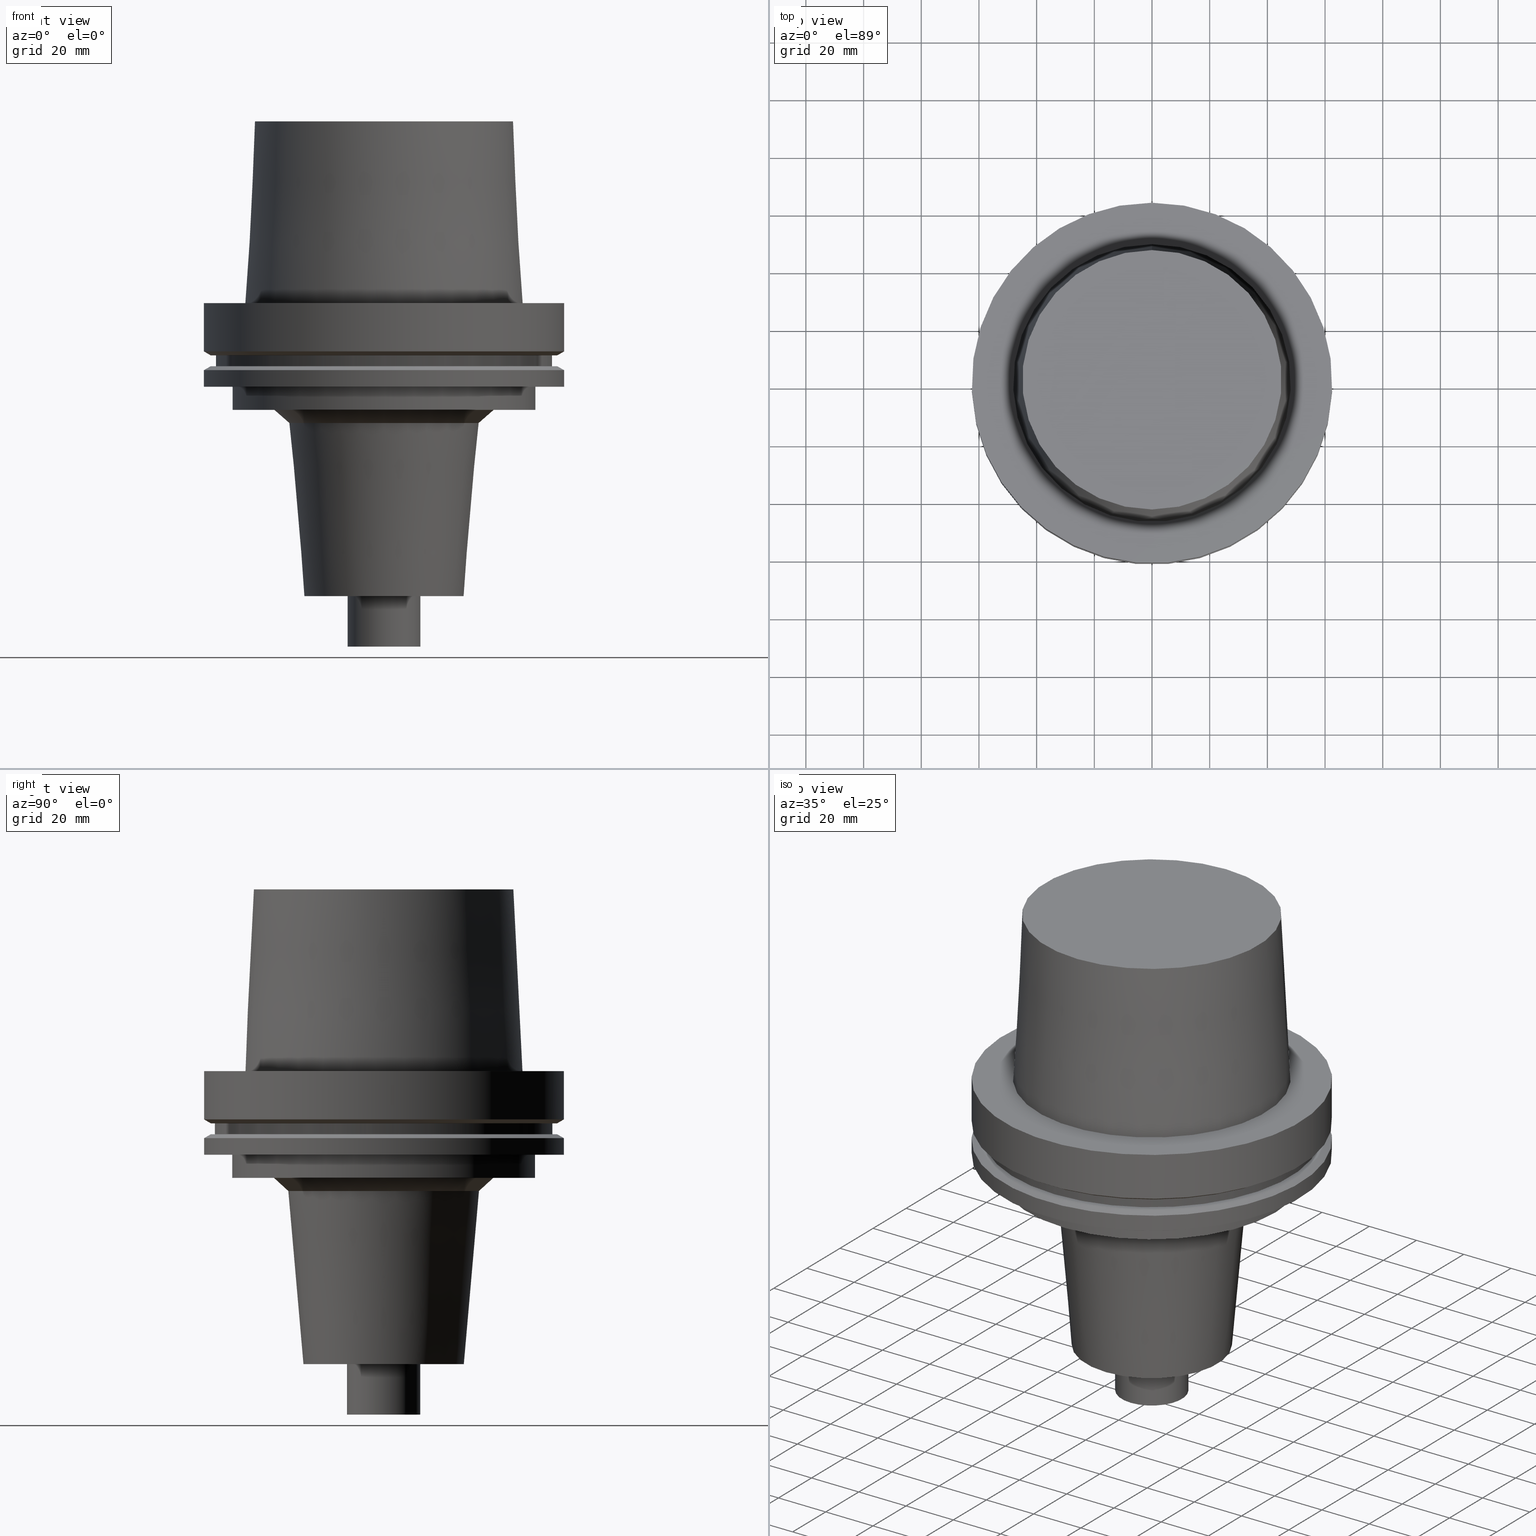
[diagram: canonical four-view strip — front | top / right | iso, engineering-drawing reading convention]
A machine part, canonical four-view strip (front | top / right | iso — engineering-drawing reading convention). The complete STEP part file that produces these views, byte-faithful:
ISO-10303-21;
HEADER;
FILE_DESCRIPTION((''),'1');
FILE_NAME('V:/02_3D_Field-HP\X2\FF71FF6FFF8CFF9F5916\X0\2013/02_Step_Field-HP\X2\FF71FF6FFF8CFF9F5916\X0\2013/HSK-A125-SMC1.000-4.stp','2017-07-11T04:44:14',(''),(''),'Spatial Interop R21 SP3','Kubotek KeyCreator 2011 V10.0.2 (22737)',' ');
FILE_SCHEMA(('automotive_design'));
ENDSEC;
DATA;
#1=MECHANICAL_DESIGN_GEOMETRIC_PRESENTATION_REPRESENTATION(' ',(#10,#11,#12,#13,#14,#15,#16,#17,#18,#19,#20,#21,#22,#23,#24,#25,#26,#27,#28,#29,#30,#31,#32,#33,#34,#35,#36,#37,#38,#39,#40,#41,#42,#43,#44,#45),#6);
#2=PRODUCT_DEFINITION_CONTEXT('',#46,'design');
#3=APPLICATION_PROTOCOL_DEFINITION('INTERNATIONAL STANDARD','automotive_design',1994,#46);
#4=PRODUCT_CATEGORY_RELATIONSHIP('NONE','NONE',#47,#48);
#5=SHAPE_DEFINITION_REPRESENTATION(#49,#50);
#6= (GEOMETRIC_REPRESENTATION_CONTEXT(3)GLOBAL_UNCERTAINTY_ASSIGNED_CONTEXT((#53))GLOBAL_UNIT_ASSIGNED_CONTEXT((#55,#56,#57))REPRESENTATION_CONTEXT('NONE','WORKSPACE'));
#10=STYLED_ITEM('',(#59,#60),#61);
#11=STYLED_ITEM('',(#62,#63),#64);
#12=STYLED_ITEM('',(#65,#66),#67);
#13=STYLED_ITEM('',(#68),#69);
#14=STYLED_ITEM('',(#70),#71);
#15=STYLED_ITEM('',(#72,#73),#74);
#16=STYLED_ITEM('',(#75,#76),#77);
#17=STYLED_ITEM('',(#78),#79);
#18=STYLED_ITEM('',(#80),#81);
#19=STYLED_ITEM('',(#82,#83),#84);
#20=STYLED_ITEM('',(#85),#86);
#21=STYLED_ITEM('',(#87),#88);
#22=STYLED_ITEM('',(#89),#90);
#23=STYLED_ITEM('',(#91,#92),#93);
#24=STYLED_ITEM('',(#94),#95);
#25=STYLED_ITEM('',(#96),#97);
#26=STYLED_ITEM('',(#98),#99);
#27=STYLED_ITEM('',(#100),#101);
#28=STYLED_ITEM('',(#102),#103);
#29=STYLED_ITEM('',(#104,#105),#106);
#30=STYLED_ITEM('',(#107,#108),#109);
#31=STYLED_ITEM('',(#110,#111),#112);
#32=STYLED_ITEM('',(#113,#114),#115);
#33=STYLED_ITEM('',(#116,#117),#118);
#34=STYLED_ITEM('',(#119),#120);
#35=STYLED_ITEM('',(#121,#122),#123);
#36=STYLED_ITEM('',(#124),#125);
#37=STYLED_ITEM('',(#126,#127),#128);
#38=STYLED_ITEM('',(#129),#130);
#39=STYLED_ITEM('',(#131),#132);
#40=STYLED_ITEM('',(#133,#134),#135);
#41=STYLED_ITEM('',(#136,#137),#138);
#42=STYLED_ITEM('',(#139,#140),#141);
#43=STYLED_ITEM('',(#142,#143),#144);
#44=STYLED_ITEM('',(#145),#146);
#45=STYLED_ITEM('',(#147,#148),#149);
#46=APPLICATION_CONTEXT(' ');
#47=PRODUCT_CATEGORY('part','NONE');
#48=PRODUCT_RELATED_PRODUCT_CATEGORY('detail',' ',(#150));
#49=PRODUCT_DEFINITION_SHAPE('NONE','NONE',#151);
#50=ADVANCED_BREP_SHAPE_REPRESENTATION('Unnamed[1]',(#123,#152),#6);
#53=UNCERTAINTY_MEASURE_WITH_UNIT(LENGTH_MEASURE(1.0E-006),#55,'','');
#55= (CONVERSION_BASED_UNIT('MILLIMETRE',#155)LENGTH_UNIT()NAMED_UNIT(#158));
#56= (NAMED_UNIT(#160)PLANE_ANGLE_UNIT()SI_UNIT($,.RADIAN.));
#57= (NAMED_UNIT(#160)SOLID_ANGLE_UNIT()SI_UNIT($,.STERADIAN.));
#59=PRESENTATION_STYLE_ASSIGNMENT((#166));
#60=PRESENTATION_STYLE_ASSIGNMENT((#167));
#61=ADVANCED_FACE('Unnamed[1]',(#168,#169),#170,.T.);
#62=PRESENTATION_STYLE_ASSIGNMENT((#171));
#63=PRESENTATION_STYLE_ASSIGNMENT((#172));
#64=ADVANCED_FACE('Unnamed[1]',(#173,#174),#175,.T.);
#65=PRESENTATION_STYLE_ASSIGNMENT((#176));
#66=PRESENTATION_STYLE_ASSIGNMENT((#177));
#67=ADVANCED_FACE('Unnamed[1]',(#178,#179),#180,.T.);
#68=PRESENTATION_STYLE_ASSIGNMENT((#181));
#69=EDGE_CURVE('Unnamed[1]',#182,#182,#183,.T.);
#70=PRESENTATION_STYLE_ASSIGNMENT((#184));
#71=EDGE_CURVE('Unnamed[1]',#185,#185,#186,.T.);
#72=PRESENTATION_STYLE_ASSIGNMENT((#187));
#73=PRESENTATION_STYLE_ASSIGNMENT((#188));
#74=ADVANCED_FACE('Unnamed[1]',(#189,#190),#191,.T.);
#75=PRESENTATION_STYLE_ASSIGNMENT((#192));
#76=PRESENTATION_STYLE_ASSIGNMENT((#193));
#77=ADVANCED_FACE('Unnamed[1]',(#194,#195),#196,.T.);
#78=PRESENTATION_STYLE_ASSIGNMENT((#197));
#79=EDGE_CURVE('Unnamed[1]',#198,#198,#199,.T.);
#80=PRESENTATION_STYLE_ASSIGNMENT((#200));
#81=EDGE_CURVE('Unnamed[1]',#201,#201,#202,.T.);
#82=PRESENTATION_STYLE_ASSIGNMENT((#203));
#83=PRESENTATION_STYLE_ASSIGNMENT((#204));
#84=ADVANCED_FACE('Unnamed[1]',(#205,#206),#207,.T.);
#85=PRESENTATION_STYLE_ASSIGNMENT((#208));
#86=EDGE_CURVE('Unnamed[1]',#209,#209,#210,.T.);
#87=PRESENTATION_STYLE_ASSIGNMENT((#211));
#88=EDGE_CURVE('Unnamed[1]',#212,#212,#213,.T.);
#89=PRESENTATION_STYLE_ASSIGNMENT((#214));
#90=EDGE_CURVE('Unnamed[1]',#215,#215,#216,.T.);
#91=PRESENTATION_STYLE_ASSIGNMENT((#217));
#92=PRESENTATION_STYLE_ASSIGNMENT((#218));
#93=ADVANCED_FACE('Unnamed[1]',(#219,#220),#221,.T.);
#94=PRESENTATION_STYLE_ASSIGNMENT((#222));
#95=EDGE_CURVE('Unnamed[1]',#223,#223,#224,.T.);
#96=PRESENTATION_STYLE_ASSIGNMENT((#225));
#97=EDGE_CURVE('Unnamed[1]',#226,#226,#227,.T.);
#98=PRESENTATION_STYLE_ASSIGNMENT((#228));
#99=EDGE_CURVE('Unnamed[1]',#229,#229,#230,.T.);
#100=PRESENTATION_STYLE_ASSIGNMENT((#231));
#101=EDGE_CURVE('Unnamed[1]',#232,#232,#233,.T.);
#102=PRESENTATION_STYLE_ASSIGNMENT((#234));
#103=EDGE_CURVE('Unnamed[1]',#235,#235,#236,.T.);
#104=PRESENTATION_STYLE_ASSIGNMENT((#237));
#105=PRESENTATION_STYLE_ASSIGNMENT((#238));
#106=ADVANCED_FACE('Unnamed[1]',(#239,#240),#241,.T.);
#107=PRESENTATION_STYLE_ASSIGNMENT((#242));
#108=PRESENTATION_STYLE_ASSIGNMENT((#243));
#109=ADVANCED_FACE('Unnamed[1]',(#244),#245,.T.);
#110=PRESENTATION_STYLE_ASSIGNMENT((#246));
#111=PRESENTATION_STYLE_ASSIGNMENT((#247));
#112=ADVANCED_FACE('Unnamed[1]',(#248),#249,.T.);
#113=PRESENTATION_STYLE_ASSIGNMENT((#250));
#114=PRESENTATION_STYLE_ASSIGNMENT((#251));
#115=ADVANCED_FACE('Unnamed[1]',(#252,#253),#254,.T.);
#116=PRESENTATION_STYLE_ASSIGNMENT((#255));
#117=PRESENTATION_STYLE_ASSIGNMENT((#256));
#118=ADVANCED_FACE('Unnamed[1]',(#257,#258),#259,.T.);
#119=PRESENTATION_STYLE_ASSIGNMENT((#260));
#120=EDGE_CURVE('Unnamed[1]',#261,#261,#262,.T.);
#121=PRESENTATION_STYLE_ASSIGNMENT((#263));
#122=PRESENTATION_STYLE_ASSIGNMENT((#264));
#123=MANIFOLD_SOLID_BREP('Unnamed[1]',#265);
#124=PRESENTATION_STYLE_ASSIGNMENT((#266));
#125=EDGE_CURVE('Unnamed[1]',#267,#267,#268,.T.);
#126=PRESENTATION_STYLE_ASSIGNMENT((#269));
#127=PRESENTATION_STYLE_ASSIGNMENT((#270));
#128=ADVANCED_FACE('Unnamed[1]',(#271,#272),#273,.T.);
#129=PRESENTATION_STYLE_ASSIGNMENT((#274));
#130=EDGE_CURVE('Unnamed[1]',#275,#275,#276,.T.);
#131=PRESENTATION_STYLE_ASSIGNMENT((#277));
#132=EDGE_CURVE('Unnamed[1]',#278,#278,#279,.T.);
#133=PRESENTATION_STYLE_ASSIGNMENT((#280));
#134=PRESENTATION_STYLE_ASSIGNMENT((#281));
#135=ADVANCED_FACE('Unnamed[1]',(#282,#283),#284,.T.);
#136=PRESENTATION_STYLE_ASSIGNMENT((#285));
#137=PRESENTATION_STYLE_ASSIGNMENT((#286));
#138=ADVANCED_FACE('Unnamed[1]',(#287,#288),#289,.T.);
#139=PRESENTATION_STYLE_ASSIGNMENT((#290));
#140=PRESENTATION_STYLE_ASSIGNMENT((#291));
#141=ADVANCED_FACE('Unnamed[1]',(#292,#293),#294,.T.);
#142=PRESENTATION_STYLE_ASSIGNMENT((#295));
#143=PRESENTATION_STYLE_ASSIGNMENT((#296));
#144=ADVANCED_FACE('Unnamed[1]',(#297,#298),#299,.T.);
#145=PRESENTATION_STYLE_ASSIGNMENT((#300));
#146=EDGE_CURVE('Unnamed[1]',#301,#301,#302,.T.);
#147=PRESENTATION_STYLE_ASSIGNMENT((#303));
#148=PRESENTATION_STYLE_ASSIGNMENT((#304));
#149=ADVANCED_FACE('Unnamed[1]',(#305,#306),#307,.T.);
#150=PRODUCT('Unnamed[1]','Unnamed[1]','PART-Unnamed[1]-DESC',(#308));
#151=PRODUCT_DEFINITION('NONE','NONE',#309,#2);
#152=AXIS2_PLACEMENT_3D('',#310,#311,#312);
#155=LENGTH_MEASURE_WITH_UNIT(LENGTH_MEASURE(1.0),#313);
#158=DIMENSIONAL_EXPONENTS(1.0,0.0,0.0,0.0,0.0,0.0,0.0);
#160=DIMENSIONAL_EXPONENTS(0.0,0.0,0.0,0.0,0.0,0.0,0.0);
#166=SURFACE_STYLE_USAGE(.BOTH.,#314);
#167=CURVE_STYLE('',#315,POSITIVE_LENGTH_MEASURE(1000.0),#316);
#168=FACE_BOUND('',#317,.T.);
#169=FACE_BOUND('',#318,.T.);
#170=CYLINDRICAL_SURFACE('',#319,58.4999999999999);
#171=SURFACE_STYLE_USAGE(.BOTH.,#320);
#172=CURVE_STYLE('',#321,POSITIVE_LENGTH_MEASURE(1000.0),#322);
#173=FACE_BOUND('',#323,.T.);
#174=FACE_OUTER_BOUND('',#324,.T.);
#175=PLANE('',#325);
#176=SURFACE_STYLE_USAGE(.BOTH.,#326);
#177=CURVE_STYLE('',#327,POSITIVE_LENGTH_MEASURE(1000.0),#328);
#178=FACE_BOUND('',#329,.T.);
#179=FACE_OUTER_BOUND('',#330,.T.);
#180=PLANE('',#331);
#181=CURVE_STYLE('',#332,POSITIVE_LENGTH_MEASURE(1000.0),#333);
#182=VERTEX_POINT('',#334);
#183=CIRCLE('',#335,33.0524500434029);
#184=CURVE_STYLE('',#336,POSITIVE_LENGTH_MEASURE(1000.0),#337);
#185=VERTEX_POINT('',#338);
#186=CIRCLE('',#339,52.5000000000003);
#187=SURFACE_STYLE_USAGE(.BOTH.,#340);
#188=CURVE_STYLE('',#341,POSITIVE_LENGTH_MEASURE(1000.0),#342);
#189=FACE_OUTER_BOUND('',#343,.T.);
#190=FACE_BOUND('',#344,.T.);
#191=PLANE('',#345);
#192=SURFACE_STYLE_USAGE(.BOTH.,#346);
#193=CURVE_STYLE('',#347,POSITIVE_LENGTH_MEASURE(1000.0),#348);
#194=FACE_BOUND('',#349,.T.);
#195=FACE_BOUND('',#350,.T.);
#196=CYLINDRICAL_SURFACE('',#351,62.5000000000001);
#197=CURVE_STYLE('',#352,POSITIVE_LENGTH_MEASURE(1000.0),#353);
#198=VERTEX_POINT('',#354);
#199=CIRCLE('',#355,48.1342525050097);
#200=CURVE_STYLE('',#356,POSITIVE_LENGTH_MEASURE(1000.0),#357);
#201=VERTEX_POINT('',#358);
#202=CIRCLE('',#359,58.5);
#203=SURFACE_STYLE_USAGE(.BOTH.,#360);
#204=CURVE_STYLE('',#361,POSITIVE_LENGTH_MEASURE(1000.0),#362);
#205=FACE_BOUND('',#363,.T.);
#206=FACE_OUTER_BOUND('',#364,.T.);
#207=PLANE('',#365);
#208=CURVE_STYLE('',#366,POSITIVE_LENGTH_MEASURE(1000.0),#367);
#209=VERTEX_POINT('',#368);
#210=CIRCLE('',#369,60.122595264194);
#211=CURVE_STYLE('',#370,POSITIVE_LENGTH_MEASURE(1000.0),#371);
#212=VERTEX_POINT('',#372);
#213=CIRCLE('',#373,12.7000000000002);
#214=CURVE_STYLE('',#374,POSITIVE_LENGTH_MEASURE(1000.0),#375);
#215=VERTEX_POINT('',#376);
#216=CIRCLE('',#377,44.9779398797591);
#217=SURFACE_STYLE_USAGE(.BOTH.,#378);
#218=CURVE_STYLE('',#379,POSITIVE_LENGTH_MEASURE(1000.0),#380);
#219=FACE_BOUND('',#381,.T.);
#220=FACE_BOUND('',#382,.T.);
#221=CONICAL_SURFACE('',#383,46.5560961923844,0.0500583457465964);
#222=CURVE_STYLE('',#384,POSITIVE_LENGTH_MEASURE(1000.0),#385);
#223=VERTEX_POINT('',#386);
#224=CIRCLE('',#387,62.5);
#225=CURVE_STYLE('',#388,POSITIVE_LENGTH_MEASURE(1000.0),#389);
#226=VERTEX_POINT('',#390);
#227=CIRCLE('',#391,52.4999999999998);
#228=CURVE_STYLE('',#392,POSITIVE_LENGTH_MEASURE(1000.0),#393);
#229=VERTEX_POINT('',#394);
#230=CIRCLE('',#395,58.4999999999998);
#231=CURVE_STYLE('',#396,POSITIVE_LENGTH_MEASURE(1000.0),#397);
#232=VERTEX_POINT('',#398);
#233=CIRCLE('',#399,27.8000000000002);
#234=CURVE_STYLE('',#400,POSITIVE_LENGTH_MEASURE(1000.0),#401);
#235=VERTEX_POINT('',#402);
#236=CIRCLE('',#403,62.5);
#237=SURFACE_STYLE_USAGE(.BOTH.,#404);
#238=CURVE_STYLE('',#405,POSITIVE_LENGTH_MEASURE(1000.0),#406);
#239=FACE_BOUND('',#407,.T.);
#240=FACE_BOUND('',#408,.T.);
#241=CYLINDRICAL_SURFACE('',#409,52.5000000000001);
#242=SURFACE_STYLE_USAGE(.BOTH.,#410);
#243=CURVE_STYLE('',#411,POSITIVE_LENGTH_MEASURE(1000.0),#412);
#244=FACE_OUTER_BOUND('',#413,.T.);
#245=PLANE('',#414);
#246=SURFACE_STYLE_USAGE(.BOTH.,#415);
#247=CURVE_STYLE('',#416,POSITIVE_LENGTH_MEASURE(1000.0),#417);
#248=FACE_OUTER_BOUND('',#418,.T.);
#249=PLANE('',#419);
#250=SURFACE_STYLE_USAGE(.BOTH.,#420);
#251=CURVE_STYLE('',#421,POSITIVE_LENGTH_MEASURE(1000.0),#422);
#252=FACE_BOUND('',#423,.T.);
#253=FACE_BOUND('',#424,.T.);
#254=CYLINDRICAL_SURFACE('',#425,62.5);
#255=SURFACE_STYLE_USAGE(.BOTH.,#426);
#256=CURVE_STYLE('',#427,POSITIVE_LENGTH_MEASURE(1000.0),#428);
#257=FACE_BOUND('',#429,.T.);
#258=FACE_BOUND('',#430,.T.);
#259=CONICAL_SURFACE('',#431,61.311297632097,1.04719755119646);
#260=CURVE_STYLE('',#432,POSITIVE_LENGTH_MEASURE(1000.0),#433);
#261=VERTEX_POINT('',#434);
#262=CIRCLE('',#435,60.1225952641912);
#263=SURFACE_STYLE_USAGE(.BOTH.,#436);
#264=CURVE_STYLE('',#437,POSITIVE_LENGTH_MEASURE(1000.0),#438);
#265=CLOSED_SHELL('',(#109,#93,#74,#77,#141,#144,#61,#135,#118,#115,#64,#106,#67,#138,#149,#84,#128,#112));
#266=CURVE_STYLE('',#439,POSITIVE_LENGTH_MEASURE(1000.0),#440);
#267=VERTEX_POINT('',#441);
#268=CIRCLE('',#442,12.6999999999999);
#269=SURFACE_STYLE_USAGE(.BOTH.,#443);
#270=CURVE_STYLE('',#444,POSITIVE_LENGTH_MEASURE(1000.0),#445);
#271=FACE_BOUND('',#446,.T.);
#272=FACE_BOUND('',#447,.T.);
#273=CYLINDRICAL_SURFACE('',#448,12.7);
#274=CURVE_STYLE('',#449,POSITIVE_LENGTH_MEASURE(1000.0),#450);
#275=VERTEX_POINT('',#451);
#276=CIRCLE('',#452,62.5);
#277=CURVE_STYLE('',#453,POSITIVE_LENGTH_MEASURE(1000.0),#454);
#278=VERTEX_POINT('',#455);
#279=CIRCLE('',#456,62.5000000000002);
#280=SURFACE_STYLE_USAGE(.BOTH.,#457);
#281=CURVE_STYLE('',#458,POSITIVE_LENGTH_MEASURE(1000.0),#459);
#282=FACE_OUTER_BOUND('',#460,.T.);
#283=FACE_BOUND('',#461,.T.);
#284=PLANE('',#462);
#285=SURFACE_STYLE_USAGE(.BOTH.,#463);
#286=CURVE_STYLE('',#464,POSITIVE_LENGTH_MEASURE(1000.0),#465);
#287=FACE_BOUND('',#466,.T.);
#288=FACE_BOUND('',#467,.T.);
#289=CONICAL_SURFACE('',#468,35.5429367886322,0.829031394697318);
#290=SURFACE_STYLE_USAGE(.BOTH.,#469);
#291=CURVE_STYLE('',#470,POSITIVE_LENGTH_MEASURE(1000.0),#471);
#292=FACE_BOUND('',#472,.T.);
#293=FACE_BOUND('',#473,.T.);
#294=CONICAL_SURFACE('',#474,61.3112976320956,1.04719755119668);
#295=SURFACE_STYLE_USAGE(.BOTH.,#475);
#296=CURVE_STYLE('',#476,POSITIVE_LENGTH_MEASURE(1000.0),#477);
#297=FACE_BOUND('',#478,.T.);
#298=FACE_OUTER_BOUND('',#479,.T.);
#299=PLANE('',#480);
#300=CURVE_STYLE('',#481,POSITIVE_LENGTH_MEASURE(1000.0),#482);
#301=VERTEX_POINT('',#483);
#302=CIRCLE('',#484,38.0334235338614);
#303=SURFACE_STYLE_USAGE(.BOTH.,#485);
#304=CURVE_STYLE('',#486,POSITIVE_LENGTH_MEASURE(1000.0),#487);
#305=FACE_BOUND('',#488,.T.);
#306=FACE_BOUND('',#489,.T.);
#307=CONICAL_SURFACE('',#490,30.4262250217015,0.0872664625997151);
#308=PRODUCT_CONTEXT('',#46,'mechanical');
#309=PRODUCT_DEFINITION_FORMATION_WITH_SPECIFIED_SOURCE(' ','NONE',#150,.NOT_KNOWN.);
#310=CARTESIAN_POINT('',(0.0,0.0,0.0));
#311=DIRECTION('',(0.0,0.0,1.0));
#312=DIRECTION('',(1.0,0.0,0.0));
#313= (NAMED_UNIT(#158)LENGTH_UNIT()SI_UNIT(.MILLI.,.METRE.));
#314=SURFACE_SIDE_STYLE('',(#492));
#315=DRAUGHTING_PRE_DEFINED_CURVE_FONT('continuous');
#316=COLOUR_RGB('',0.0,1.0,0.0);
#317=EDGE_LOOP('',(#493));
#318=EDGE_LOOP('',(#494));
#319=AXIS2_PLACEMENT_3D('',#495,#496,#497);
#320=SURFACE_SIDE_STYLE('',(#498));
#321=DRAUGHTING_PRE_DEFINED_CURVE_FONT('continuous');
#322=COLOUR_RGB('',0.0,1.0,0.0);
#323=EDGE_LOOP('',(#499));
#324=EDGE_LOOP('',(#500));
#325=AXIS2_PLACEMENT_3D('',#501,#502,#503);
#326=SURFACE_SIDE_STYLE('',(#504));
#327=DRAUGHTING_PRE_DEFINED_CURVE_FONT('continuous');
#328=COLOUR_RGB('',0.0,1.0,0.0);
#329=EDGE_LOOP('',(#505));
#330=EDGE_LOOP('',(#506));
#331=AXIS2_PLACEMENT_3D('',#507,#508,#509);
#332=DRAUGHTING_PRE_DEFINED_CURVE_FONT('continuous');
#333=COLOUR_RGB('',0.0,1.0,0.0);
#334=CARTESIAN_POINT('',(2.54507452786363E-015,33.0524500434029,-41.5642212862616));
#335=AXIS2_PLACEMENT_3D('',#510,#511,#512);
#336=DRAUGHTING_PRE_DEFINED_CURVE_FONT('continuous');
#337=COLOUR_RGB('',0.0,1.0,0.0);
#338=CARTESIAN_POINT('',(1.77573785876367E-015,52.5000000000003,-29.0000000000001));
#339=AXIS2_PLACEMENT_3D('',#513,#514,#515);
#340=SURFACE_SIDE_STYLE('',(#516));
#341=DRAUGHTING_PRE_DEFINED_CURVE_FONT('continuous');
#342=COLOUR_RGB('',0.0,1.0,0.0);
#343=EDGE_LOOP('',(#517));
#344=EDGE_LOOP('',(#518));
#345=AXIS2_PLACEMENT_3D('',#519,#520,#521);
#346=SURFACE_SIDE_STYLE('',(#522));
#347=DRAUGHTING_PRE_DEFINED_CURVE_FONT('continuous');
#348=COLOUR_RGB('',0.0,1.0,0.0);
#349=EDGE_LOOP('',(#523));
#350=EDGE_LOOP('',(#524));
#351=AXIS2_PLACEMENT_3D('',#525,#526,#527);
#352=DRAUGHTING_PRE_DEFINED_CURVE_FONT('continuous');
#353=COLOUR_RGB('',0.0,1.0,0.0);
#354=CARTESIAN_POINT('',(3.88342032297484E-029,48.1342525050097,-6.38005254174039E-013));
#355=AXIS2_PLACEMENT_3D('',#528,#529,#530);
#356=DRAUGHTING_PRE_DEFINED_CURVE_FONT('continuous');
#357=COLOUR_RGB('',0.0,1.0,0.0);
#358=CARTESIAN_POINT('',(1.10983616172739E-015,58.5,-18.1250000000017));
#359=AXIS2_PLACEMENT_3D('',#531,#532,#533);
#360=SURFACE_SIDE_STYLE('',(#534));
#361=DRAUGHTING_PRE_DEFINED_CURVE_FONT('continuous');
#362=COLOUR_RGB('',0.0,1.0,0.0);
#363=EDGE_LOOP('',(#535));
#364=EDGE_LOOP('',(#536));
#365=AXIS2_PLACEMENT_3D('',#537,#538,#539);
#366=DRAUGHTING_PRE_DEFINED_CURVE_FONT('continuous');
#367=COLOUR_RGB('',0.0,1.0,0.0);
#368=CARTESIAN_POINT('',(1.33945743656747E-015,60.122595264194,-21.8750000000009));
#369=AXIS2_PLACEMENT_3D('',#540,#541,#542);
#370=DRAUGHTING_PRE_DEFINED_CURVE_FONT('continuous');
#371=COLOUR_RGB('',0.0,1.0,0.0);
#372=CARTESIAN_POINT('',(6.22120573966838E-015,12.7000000000002,-101.599999999997));
#373=AXIS2_PLACEMENT_3D('',#543,#544,#545);
#374=DRAUGHTING_PRE_DEFINED_CURVE_FONT('continuous');
#375=COLOUR_RGB('',0.0,1.0,0.0);
#376=CARTESIAN_POINT('',(-3.85763741731416E-015,44.9779398797591,62.9999999999999));
#377=AXIS2_PLACEMENT_3D('',#546,#547,#548);
#378=SURFACE_SIDE_STYLE('',(#549));
#379=DRAUGHTING_PRE_DEFINED_CURVE_FONT('continuous');
#380=COLOUR_RGB('',0.0,1.0,0.0);
#381=EDGE_LOOP('',(#550));
#382=EDGE_LOOP('',(#551));
#383=AXIS2_PLACEMENT_3D('',#552,#553,#554);
#384=DRAUGHTING_PRE_DEFINED_CURVE_FONT('continuous');
#385=COLOUR_RGB('',0.0,1.0,0.0);
#386=CARTESIAN_POINT('',(1.77573785876367E-015,62.5,-29.0000000000001));
#387=AXIS2_PLACEMENT_3D('',#555,#556,#557);
#388=DRAUGHTING_PRE_DEFINED_CURVE_FONT('continuous');
#389=COLOUR_RGB('',0.0,1.0,0.0);
#390=CARTESIAN_POINT('',(2.26559657842261E-015,52.4999999999998,-37.0000000000001));
#391=AXIS2_PLACEMENT_3D('',#558,#559,#560);
#392=DRAUGHTING_PRE_DEFINED_CURVE_FONT('continuous');
#393=COLOUR_RGB('',0.0,1.0,0.0);
#394=CARTESIAN_POINT('',(1.33945743656732E-015,58.4999999999998,-21.8749999999984));
#395=AXIS2_PLACEMENT_3D('',#561,#562,#563);
#396=DRAUGHTING_PRE_DEFINED_CURVE_FONT('continuous');
#397=COLOUR_RGB('',0.0,1.0,0.0);
#398=CARTESIAN_POINT('',(6.22120573966833E-015,27.8000000000002,-101.599999999996));
#399=AXIS2_PLACEMENT_3D('',#564,#565,#566);
#400=DRAUGHTING_PRE_DEFINED_CURVE_FONT('continuous');
#401=COLOUR_RGB('',0.0,1.0,0.0);
#402=CARTESIAN_POINT('',(1.02578894188644E-015,62.5,-16.7524047358084));
#403=AXIS2_PLACEMENT_3D('',#567,#568,#569);
#404=SURFACE_SIDE_STYLE('',(#570));
#405=DRAUGHTING_PRE_DEFINED_CURVE_FONT('continuous');
#406=COLOUR_RGB('',0.0,1.0,0.0);
#407=EDGE_LOOP('',(#571));
#408=EDGE_LOOP('',(#572));
#409=AXIS2_PLACEMENT_3D('',#573,#574,#575);
#410=SURFACE_SIDE_STYLE('',(#576));
#411=DRAUGHTING_PRE_DEFINED_CURVE_FONT('continuous');
#412=COLOUR_RGB('',0.0,1.0,0.0);
#413=EDGE_LOOP('',(#577));
#414=AXIS2_PLACEMENT_3D('',#578,#579,#580);
#415=SURFACE_SIDE_STYLE('',(#581));
#416=DRAUGHTING_PRE_DEFINED_CURVE_FONT('continuous');
#417=COLOUR_RGB('',0.0,1.0,0.0);
#418=EDGE_LOOP('',(#582));
#419=AXIS2_PLACEMENT_3D('',#583,#584,#585);
#420=SURFACE_SIDE_STYLE('',(#586));
#421=DRAUGHTING_PRE_DEFINED_CURVE_FONT('continuous');
#422=COLOUR_RGB('',0.0,1.0,0.0);
#423=EDGE_LOOP('',(#587));
#424=EDGE_LOOP('',(#588));
#425=AXIS2_PLACEMENT_3D('',#589,#590,#591);
#426=SURFACE_SIDE_STYLE('',(#592));
#427=DRAUGHTING_PRE_DEFINED_CURVE_FONT('continuous');
#428=COLOUR_RGB('',0.0,1.0,0.0);
#429=EDGE_LOOP('',(#593));
#430=EDGE_LOOP('',(#594));
#431=AXIS2_PLACEMENT_3D('',#595,#596,#597);
#432=DRAUGHTING_PRE_DEFINED_CURVE_FONT('continuous');
#433=COLOUR_RGB('',0.0,1.0,0.0);
#434=CARTESIAN_POINT('',(1.10983616172729E-015,60.1225952641912,-18.1250000000001));
#435=AXIS2_PLACEMENT_3D('',#598,#599,#600);
#436=SURFACE_SIDE_STYLE('',(#601));
#437=DRAUGHTING_PRE_DEFINED_CURVE_FONT('continuous');
#438=COLOUR_RGB('',0.0,1.0,0.0);
#439=DRAUGHTING_PRE_DEFINED_CURVE_FONT('continuous');
#440=COLOUR_RGB('',0.0,1.0,0.0);
#441=CARTESIAN_POINT('',(7.29277168892233E-015,12.6999999999999,-119.099999999997));
#442=AXIS2_PLACEMENT_3D('',#602,#603,#604);
#443=SURFACE_SIDE_STYLE('',(#605));
#444=DRAUGHTING_PRE_DEFINED_CURVE_FONT('continuous');
#445=COLOUR_RGB('',0.0,1.0,0.0);
#446=EDGE_LOOP('',(#606));
#447=EDGE_LOOP('',(#607));
#448=AXIS2_PLACEMENT_3D('',#608,#609,#610);
#449=DRAUGHTING_PRE_DEFINED_CURVE_FONT('continuous');
#450=COLOUR_RGB('',0.0,1.0,0.0);
#451=CARTESIAN_POINT('',(1.42350465640827E-015,62.5,-23.2475952641916));
#452=AXIS2_PLACEMENT_3D('',#611,#612,#613);
#453=DRAUGHTING_PRE_DEFINED_CURVE_FONT('continuous');
#454=COLOUR_RGB('',0.0,1.0,0.0);
#455=CARTESIAN_POINT('',(-5.58935713239973E-030,62.5000000000002,8.63540424946709E-014));
#456=AXIS2_PLACEMENT_3D('',#614,#615,#616);
#457=SURFACE_SIDE_STYLE('',(#617));
#458=DRAUGHTING_PRE_DEFINED_CURVE_FONT('continuous');
#459=COLOUR_RGB('',0.0,1.0,0.0);
#460=EDGE_LOOP('',(#618));
#461=EDGE_LOOP('',(#619));
#462=AXIS2_PLACEMENT_3D('',#620,#621,#622);
#463=SURFACE_SIDE_STYLE('',(#623));
#464=DRAUGHTING_PRE_DEFINED_CURVE_FONT('continuous');
#465=COLOUR_RGB('',0.0,1.0,0.0);
#466=EDGE_LOOP('',(#624));
#467=EDGE_LOOP('',(#625));
#468=AXIS2_PLACEMENT_3D('',#626,#627,#628);
#469=SURFACE_SIDE_STYLE('',(#629));
#470=DRAUGHTING_PRE_DEFINED_CURVE_FONT('continuous');
#471=COLOUR_RGB('',0.0,1.0,0.0);
#472=EDGE_LOOP('',(#630));
#473=EDGE_LOOP('',(#631));
#474=AXIS2_PLACEMENT_3D('',#632,#633,#634);
#475=SURFACE_SIDE_STYLE('',(#635));
#476=DRAUGHTING_PRE_DEFINED_CURVE_FONT('continuous');
#477=COLOUR_RGB('',0.0,1.0,0.0);
#478=EDGE_LOOP('',(#636));
#479=EDGE_LOOP('',(#637));
#480=AXIS2_PLACEMENT_3D('',#638,#639,#640);
#481=DRAUGHTING_PRE_DEFINED_CURVE_FONT('continuous');
#482=COLOUR_RGB('',0.0,1.0,0.0);
#483=CARTESIAN_POINT('',(2.26559657842261E-015,38.0334235338614,-37.0000000000001));
#484=AXIS2_PLACEMENT_3D('',#641,#642,#643);
#485=SURFACE_SIDE_STYLE('',(#644));
#486=DRAUGHTING_PRE_DEFINED_CURVE_FONT('continuous');
#487=COLOUR_RGB('',0.0,1.0,0.0);
#488=EDGE_LOOP('',(#645));
#489=EDGE_LOOP('',(#646));
#490=AXIS2_PLACEMENT_3D('',#647,#648,#649);
#492=SURFACE_STYLE_FILL_AREA(#650);
#493=ORIENTED_EDGE('',*,*,#99,.F.);
#494=ORIENTED_EDGE('',*,*,#81,.T.);
#495=CARTESIAN_POINT('',(1.22464679914736E-015,2.44929359829471E-015,-20.0));
#496=DIRECTION('',(6.12323399573677E-017,1.22464679914735E-016,-1.0));
#497=DIRECTION('',(-1.23259516440783E-032,1.0,1.22464679914735E-016));
#498=SURFACE_STYLE_FILL_AREA(#651);
#499=ORIENTED_EDGE('',*,*,#71,.F.);
#500=ORIENTED_EDGE('',*,*,#95,.T.);
#501=CARTESIAN_POINT('',(1.77573785876367E-015,57.5000000000002,-29.0000000000001));
#502=DIRECTION('',(6.12323399573677E-017,1.22464679914735E-016,-1.0));
#503=DIRECTION('',(-1.23259516440783E-032,1.0,1.22464679914735E-016));
#504=SURFACE_STYLE_FILL_AREA(#652);
#505=ORIENTED_EDGE('',*,*,#146,.F.);
#506=ORIENTED_EDGE('',*,*,#97,.T.);
#507=CARTESIAN_POINT('',(2.26559657842261E-015,45.2667117669306,-37.0000000000001));
#508=DIRECTION('',(6.12323399573677E-017,4.54291939966775E-015,-1.0));
#509=DIRECTION('',(-2.83000737810145E-031,1.0,4.54291939966775E-015));
#510=CARTESIAN_POINT('',(2.54507452786363E-015,5.09014905572725E-015,-41.5642212862616));
#511=DIRECTION('',(6.12323399573677E-017,1.22464679914735E-016,-1.0));
#512=DIRECTION('',(-1.23259516440783E-032,1.0,1.22464679914735E-016));
#513=CARTESIAN_POINT('',(1.77573785876367E-015,3.55147571752733E-015,-29.0000000000001));
#514=DIRECTION('',(6.12323399573677E-017,1.22464679914735E-016,-1.0));
#515=DIRECTION('',(-1.23259516440783E-032,1.0,1.22464679914735E-016));
#516=SURFACE_STYLE_FILL_AREA(#653);
#517=ORIENTED_EDGE('',*,*,#132,.F.);
#518=ORIENTED_EDGE('',*,*,#79,.T.);
#519=CARTESIAN_POINT('',(1.66224230486744E-029,55.317126252505,-2.75825605839684E-013));
#520=DIRECTION('',(-6.12323399573677E-017,-5.04226666187264E-014,1.0));
#521=DIRECTION('',(3.09232501668564E-030,-1.0,-5.04226666187264E-014));
#522=SURFACE_STYLE_FILL_AREA(#654);
#523=ORIENTED_EDGE('',*,*,#103,.F.);
#524=ORIENTED_EDGE('',*,*,#132,.T.);
#525=CARTESIAN_POINT('',(5.12894470943215E-016,1.02578894188643E-015,-8.37620236790416));
#526=DIRECTION('',(6.12323399573677E-017,1.22464679914735E-016,-1.0));
#527=DIRECTION('',(-1.23259516440783E-032,1.0,1.22464679914735E-016));
#528=CARTESIAN_POINT('',(3.91573749152705E-029,7.83147498305409E-029,-6.3948846218409E-013));
#529=DIRECTION('',(6.12323399573677E-017,1.22464679914735E-016,-1.0));
#530=DIRECTION('',(-1.23259516440783E-032,1.0,1.22464679914735E-016));
#531=CARTESIAN_POINT('',(1.10983616172739E-015,2.21967232345478E-015,-18.1250000000017));
#532=DIRECTION('',(6.12323399573677E-017,1.22464679914735E-016,-1.0));
#533=DIRECTION('',(-1.23259516440783E-032,1.0,1.22464679914735E-016));
#534=SURFACE_STYLE_FILL_AREA(#655);
#535=ORIENTED_EDGE('',*,*,#88,.F.);
#536=ORIENTED_EDGE('',*,*,#101,.T.);
#537=CARTESIAN_POINT('',(6.22120573966836E-015,20.2500000000002,-101.599999999997));
#538=DIRECTION('',(6.12323399573677E-017,4.62371587888483E-014,-1.0));
#539=DIRECTION('',(-2.83603657835232E-030,1.0,4.62371587888483E-014));
#540=CARTESIAN_POINT('',(1.33945743656747E-015,2.67891487313494E-015,-21.8750000000009));
#541=DIRECTION('',(6.12323399573677E-017,1.22464679914735E-016,-1.0));
#542=DIRECTION('',(-1.23259516440783E-032,1.0,1.22464679914735E-016));
#543=CARTESIAN_POINT('',(6.22120573966838E-015,1.24424114793368E-014,-101.599999999997));
#544=DIRECTION('',(6.12323399573677E-017,1.22464679914735E-016,-1.0));
#545=DIRECTION('',(-1.23259516440783E-032,1.0,1.22464679914735E-016));
#546=CARTESIAN_POINT('',(-3.85763741731416E-015,-7.71527483462831E-015,62.9999999999999));
#547=DIRECTION('',(6.12323399573677E-017,1.22464679914735E-016,-1.0));
#548=DIRECTION('',(-1.23259516440783E-032,1.0,1.22464679914735E-016));
#549=SURFACE_STYLE_FILL_AREA(#656);
#550=ORIENTED_EDGE('',*,*,#79,.F.);
#551=ORIENTED_EDGE('',*,*,#90,.T.);
#552=CARTESIAN_POINT('',(-1.92881870865706E-015,-3.85763741731411E-015,31.4999999999996));
#553=DIRECTION('',(6.12323399573676E-017,1.22464679914735E-016,-1.0));
#554=DIRECTION('',(-1.23259516440783E-032,1.0,1.22464679914735E-016));
#555=CARTESIAN_POINT('',(1.77573785876367E-015,3.55147571752733E-015,-29.0000000000001));
#556=DIRECTION('',(6.12323399573677E-017,1.22464679914735E-016,-1.0));
#557=DIRECTION('',(-1.23259516440783E-032,1.0,1.22464679914735E-016));
#558=CARTESIAN_POINT('',(2.26559657842261E-015,4.53119315684521E-015,-37.0000000000001));
#559=DIRECTION('',(6.12323399573677E-017,1.22464679914735E-016,-1.0));
#560=DIRECTION('',(-1.23259516440783E-032,1.0,1.22464679914735E-016));
#561=CARTESIAN_POINT('',(1.33945743656732E-015,2.67891487313464E-015,-21.8749999999984));
#562=DIRECTION('',(6.12323399573677E-017,1.22464679914735E-016,-1.0));
#563=DIRECTION('',(-1.23259516440783E-032,1.0,1.22464679914735E-016));
#564=CARTESIAN_POINT('',(6.22120573966833E-015,1.24424114793367E-014,-101.599999999996));
#565=DIRECTION('',(6.12323399573677E-017,1.22464679914735E-016,-1.0));
#566=DIRECTION('',(-1.23259516440783E-032,1.0,1.22464679914735E-016));
#567=CARTESIAN_POINT('',(1.02578894188644E-015,2.05157788377287E-015,-16.7524047358084));
#568=DIRECTION('',(6.12323399573676E-017,1.22464679914735E-016,-1.0));
#569=DIRECTION('',(-1.23259516440783E-032,1.0,1.22464679914735E-016));
#570=SURFACE_STYLE_FILL_AREA(#657);
#571=ORIENTED_EDGE('',*,*,#97,.F.);
#572=ORIENTED_EDGE('',*,*,#71,.T.);
#573=CARTESIAN_POINT('',(2.02066721859314E-015,4.04133443718627E-015,-33.0000000000001));
#574=DIRECTION('',(6.12323399573677E-017,1.22464679914735E-016,-1.0));
#575=DIRECTION('',(-1.23259516440783E-032,1.0,1.22464679914735E-016));
#576=SURFACE_STYLE_FILL_AREA(#658);
#577=ORIENTED_EDGE('',*,*,#90,.F.);
#578=CARTESIAN_POINT('',(-3.85763741731416E-015,22.4889699398795,62.9999999999999));
#579=DIRECTION('',(-6.12323399573677E-017,-1.22464679914735E-016,1.0));
#580=DIRECTION('',(1.23259516440783E-032,-1.0,-1.22464679914735E-016));
#581=SURFACE_STYLE_FILL_AREA(#659);
#582=ORIENTED_EDGE('',*,*,#125,.T.);
#583=CARTESIAN_POINT('',(7.29277168892233E-015,6.34999999999994,-119.099999999997));
#584=DIRECTION('',(6.12323399573677E-017,1.22464679914735E-016,-1.0));
#585=DIRECTION('',(-1.23259516440783E-032,1.0,1.22464679914735E-016));
#586=SURFACE_STYLE_FILL_AREA(#660);
#587=ORIENTED_EDGE('',*,*,#95,.F.);
#588=ORIENTED_EDGE('',*,*,#130,.T.);
#589=CARTESIAN_POINT('',(1.59962125758597E-015,3.19924251517194E-015,-26.1237976320958));
#590=DIRECTION('',(6.12323399573677E-017,1.22464679914735E-016,-1.0));
#591=DIRECTION('',(-1.23259516440783E-032,1.0,1.22464679914735E-016));
#592=SURFACE_STYLE_FILL_AREA(#661);
#593=ORIENTED_EDGE('',*,*,#130,.F.);
#594=ORIENTED_EDGE('',*,*,#86,.T.);
#595=CARTESIAN_POINT('',(1.38148104648787E-015,2.76296209297574E-015,-22.5612976320962));
#596=DIRECTION('',(6.12323399573677E-017,1.22464679914735E-016,-1.0));
#597=DIRECTION('',(-1.23259516440783E-032,1.0,1.22464679914735E-016));
#598=CARTESIAN_POINT('',(1.10983616172729E-015,2.21967232345459E-015,-18.1250000000001));
#599=DIRECTION('',(6.12323399573677E-017,1.22464679914735E-016,-1.0));
#600=DIRECTION('',(-1.23259516440783E-032,1.0,1.22464679914735E-016));
#601=SURFACE_STYLE_FILL_AREA(#662);
#602=CARTESIAN_POINT('',(7.29277168892233E-015,1.45855433778447E-014,-119.099999999997));
#603=DIRECTION('',(6.12323399573677E-017,1.22464679914735E-016,-1.0));
#604=DIRECTION('',(-1.23259516440783E-032,1.0,1.22464679914735E-016));
#605=SURFACE_STYLE_FILL_AREA(#663);
#606=ORIENTED_EDGE('',*,*,#125,.F.);
#607=ORIENTED_EDGE('',*,*,#88,.T.);
#608=CARTESIAN_POINT('',(6.75698871429535E-015,1.35139774285907E-014,-110.349999999997));
#609=DIRECTION('',(6.12323399573677E-017,1.22464679914735E-016,-1.0));
#610=DIRECTION('',(-1.23259516440783E-032,1.0,1.22464679914735E-016));
#611=CARTESIAN_POINT('',(1.42350465640827E-015,2.84700931281654E-015,-23.2475952641916));
#612=DIRECTION('',(6.12323399573677E-017,1.22464679914735E-016,-1.0));
#613=DIRECTION('',(-1.23259516440783E-032,1.0,1.22464679914735E-016));
#614=CARTESIAN_POINT('',(-5.22098332203606E-030,-1.04419666440721E-029,8.5265128291212E-014));
#615=DIRECTION('',(6.12323399573677E-017,1.22464679914735E-016,-1.0));
#616=DIRECTION('',(-1.23259516440783E-032,1.0,1.22464679914735E-016));
#617=SURFACE_STYLE_FILL_AREA(#664);
#618=ORIENTED_EDGE('',*,*,#86,.F.);
#619=ORIENTED_EDGE('',*,*,#99,.T.);
#620=CARTESIAN_POINT('',(1.33945743656739E-015,59.3112976320969,-21.8749999999996));
#621=DIRECTION('',(-6.12323399573677E-017,1.54130347502767E-012,1.0));
#622=DIRECTION('',(-9.43727912076354E-029,-1.0,1.54130347502767E-012));
#623=SURFACE_STYLE_FILL_AREA(#665);
#624=ORIENTED_EDGE('',*,*,#69,.F.);
#625=ORIENTED_EDGE('',*,*,#146,.T.);
#626=CARTESIAN_POINT('',(2.40533555314312E-015,4.81067110628624E-015,-39.2821106431308));
#627=DIRECTION('',(-6.12323399573677E-017,-1.22464679914735E-016,1.0));
#628=DIRECTION('',(-1.23259516440783E-032,1.0,1.22464679914735E-016));
#629=SURFACE_STYLE_FILL_AREA(#666);
#630=ORIENTED_EDGE('',*,*,#120,.F.);
#631=ORIENTED_EDGE('',*,*,#103,.T.);
#632=CARTESIAN_POINT('',(1.06781255180686E-015,2.13562510361373E-015,-17.4387023679042));
#633=DIRECTION('',(-6.12323399573676E-017,-1.22464679914735E-016,1.0));
#634=DIRECTION('',(-1.23259516440783E-032,1.0,1.22464679914735E-016));
#635=SURFACE_STYLE_FILL_AREA(#667);
#636=ORIENTED_EDGE('',*,*,#81,.F.);
#637=ORIENTED_EDGE('',*,*,#120,.T.);
#638=CARTESIAN_POINT('',(1.10983616172734E-015,59.3112976320956,-18.1250000000009));
#639=DIRECTION('',(6.12323399573677E-017,9.85408931824386E-013,-1.0));
#640=DIRECTION('',(-6.03437218632281E-029,1.0,9.85408931824386E-013));
#641=CARTESIAN_POINT('',(2.26559657842261E-015,4.53119315684522E-015,-37.0000000000001));
#642=DIRECTION('',(6.12323399573677E-017,1.22464679914735E-016,-1.0));
#643=DIRECTION('',(-1.23259516440783E-032,1.0,1.22464679914735E-016));
#644=SURFACE_STYLE_FILL_AREA(#668);
#645=ORIENTED_EDGE('',*,*,#101,.F.);
#646=ORIENTED_EDGE('',*,*,#69,.T.);
#647=CARTESIAN_POINT('',(4.38314013376598E-015,8.76628026753196E-015,-71.582110643129));
#648=DIRECTION('',(-6.12323399573677E-017,-1.22464679914735E-016,1.0));
#649=DIRECTION('',(-1.23259516440783E-032,1.0,1.22464679914735E-016));
#650=FILL_AREA_STYLE('',(#669));
#651=FILL_AREA_STYLE('',(#670));
#652=FILL_AREA_STYLE('',(#671));
#653=FILL_AREA_STYLE('',(#672));
#654=FILL_AREA_STYLE('',(#673));
#655=FILL_AREA_STYLE('',(#674));
#656=FILL_AREA_STYLE('',(#675));
#657=FILL_AREA_STYLE('',(#676));
#658=FILL_AREA_STYLE('',(#677));
#659=FILL_AREA_STYLE('',(#678));
#660=FILL_AREA_STYLE('',(#679));
#661=FILL_AREA_STYLE('',(#680));
#662=FILL_AREA_STYLE('',(#681));
#663=FILL_AREA_STYLE('',(#682));
#664=FILL_AREA_STYLE('',(#683));
#665=FILL_AREA_STYLE('',(#684));
#666=FILL_AREA_STYLE('',(#685));
#667=FILL_AREA_STYLE('',(#686));
#668=FILL_AREA_STYLE('',(#687));
#669=FILL_AREA_STYLE_COLOUR('',#688);
#670=FILL_AREA_STYLE_COLOUR('',#689);
#671=FILL_AREA_STYLE_COLOUR('',#690);
#672=FILL_AREA_STYLE_COLOUR('',#691);
#673=FILL_AREA_STYLE_COLOUR('',#692);
#674=FILL_AREA_STYLE_COLOUR('',#693);
#675=FILL_AREA_STYLE_COLOUR('',#694);
#676=FILL_AREA_STYLE_COLOUR('',#695);
#677=FILL_AREA_STYLE_COLOUR('',#696);
#678=FILL_AREA_STYLE_COLOUR('',#697);
#679=FILL_AREA_STYLE_COLOUR('',#698);
#680=FILL_AREA_STYLE_COLOUR('',#699);
#681=FILL_AREA_STYLE_COLOUR('',#700);
#682=FILL_AREA_STYLE_COLOUR('',#701);
#683=FILL_AREA_STYLE_COLOUR('',#702);
#684=FILL_AREA_STYLE_COLOUR('',#703);
#685=FILL_AREA_STYLE_COLOUR('',#704);
#686=FILL_AREA_STYLE_COLOUR('',#705);
#687=FILL_AREA_STYLE_COLOUR('',#706);
#688=COLOUR_RGB('',0.0,1.0,0.0);
#689=COLOUR_RGB('',0.0,1.0,0.0);
#690=COLOUR_RGB('',0.0,1.0,0.0);
#691=COLOUR_RGB('',0.0,1.0,0.0);
#692=COLOUR_RGB('',0.0,1.0,0.0);
#693=COLOUR_RGB('',0.0,1.0,0.0);
#694=COLOUR_RGB('',0.0,1.0,0.0);
#695=COLOUR_RGB('',0.0,1.0,0.0);
#696=COLOUR_RGB('',0.0,1.0,0.0);
#697=COLOUR_RGB('',0.0,1.0,0.0);
#698=COLOUR_RGB('',0.0,1.0,0.0);
#699=COLOUR_RGB('',0.0,1.0,0.0);
#700=COLOUR_RGB('',0.0,1.0,0.0);
#701=COLOUR_RGB('',0.0,1.0,0.0);
#702=COLOUR_RGB('',0.0,1.0,0.0);
#703=COLOUR_RGB('',0.0,1.0,0.0);
#704=COLOUR_RGB('',0.0,1.0,0.0);
#705=COLOUR_RGB('',0.0,1.0,0.0);
#706=COLOUR_RGB('',0.0,1.0,0.0);
ENDSEC;
END-ISO-10303-21;
